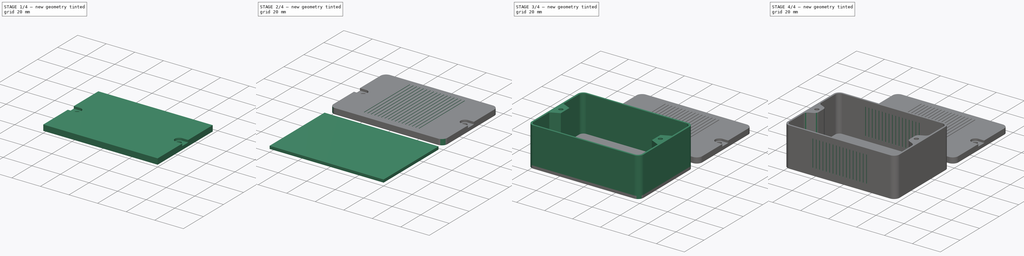
[diagram: build sequence overview — one tinted view per stage of 4, left to right]
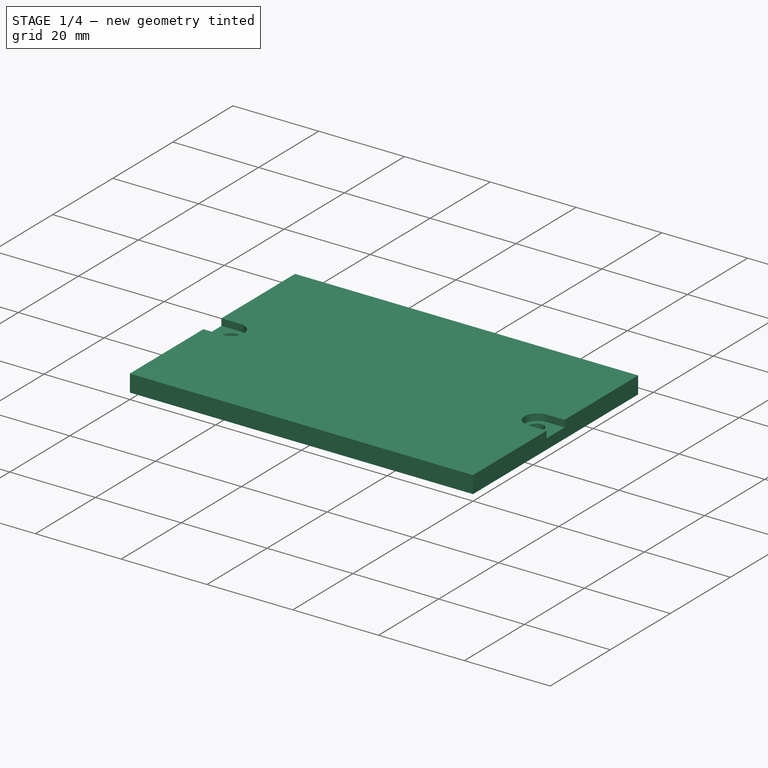
[diagram: stage 1 of 4 — iso view after this stage's code; geometry added in this stage tinted green]
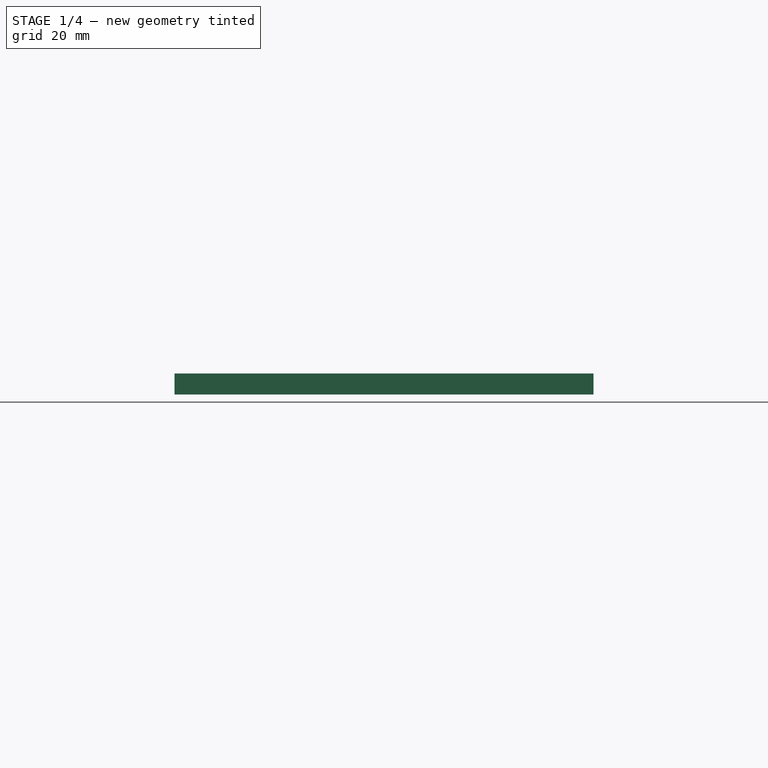
[diagram: stage 1 of 4 — front view after this stage's code; geometry added in this stage tinted green]
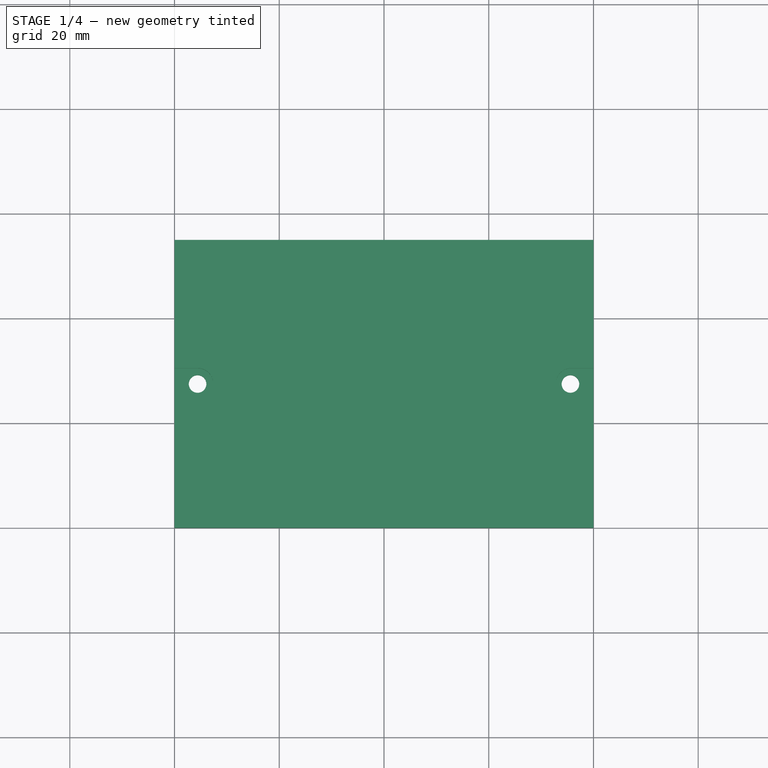
[diagram: stage 1 of 4 — top view after this stage's code; geometry added in this stage tinted green]
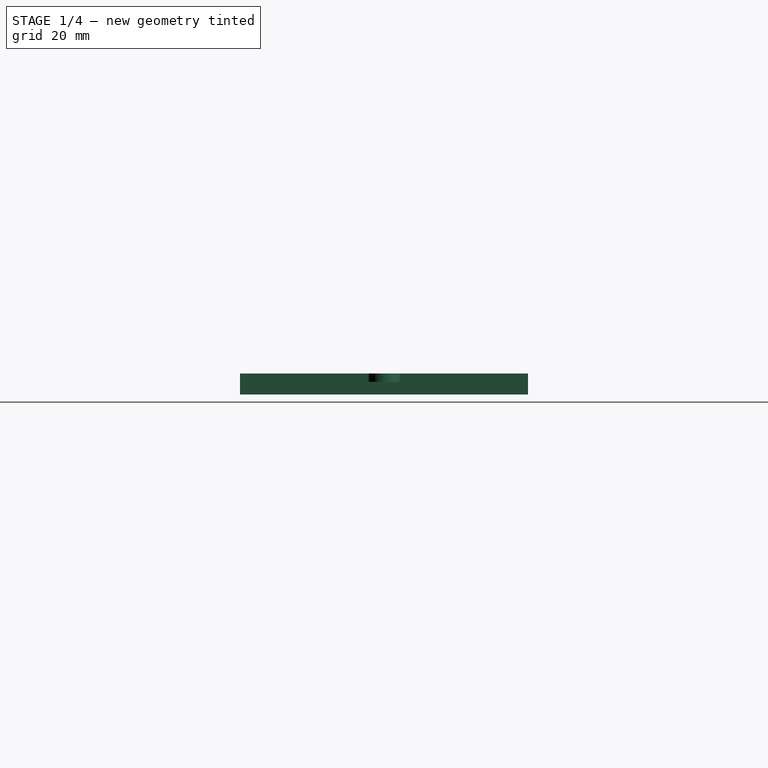
[diagram: stage 1 of 4 — right view after this stage's code; geometry added in this stage tinted green]
FCSTD DOCUMENT  (FreeCAD 0.16R6706 (Git))
Label: descbox
License: All rights reserved
LicenseURL: http://en.wikipedia.org/wiki/All_rights_reserved
objects: Sketcher::SketchObject×6, PartDesign::Pocket×5, PartDesign::Fillet×5, Part::Box×2, PartDesign::Pad×1
note: 25 computed .brp shape members not serialized (recipe doc carries the construction recipe); baked Part::Feature solids carry a one-line shape summary decoded from their .brp

FEATURE [Part::Box] Box001  label="top"
  Height = 4
  Length = 80
  Placement = pos=(0,60,0) rot=(0,0,1;0rad)
  Width = 55
FEATURE [Sketcher::SketchObject] Sketch001
  Placement = pos=(0,60,4) rot=(0,0,1;0rad)
  Support = -> Box001 [Face6]
  sketch-geometry (2):
    g0: Circle CenterX=4.4 CenterY=27.5 CenterZ=0 NormalX=0 NormalY=0 NormalZ=1 Radius=1.68
    g1: Circle CenterX=75.6 CenterY=27.5 CenterZ=0 NormalX=0 NormalY=0 NormalZ=1 Radius=1.68
  constraints (6):
    c: Radius(g0) = 1.68
    c: DistanceX(g-2,g0) = 4.4
    c: Equal(g0,g1)
    c: Distance(g0,g1) = 71.2
    c: DistanceY(g-1,g0) = 27.5
    c: DistanceY(g-1,g1) = 27.5
FEATURE [PartDesign::Pocket] Pocket
  Length = 5
  Placement = pos=(0,60,0) rot=(0,0,1;0rad)
  Sketch = -> Sketch001
  Type = 0
FEATURE [Sketcher::SketchObject] Sketch004
  Placement = pos=(0,60,4) rot=(0,0,1;0rad)
  Support = -> Pocket [Face3]
  sketch-geometry (8):
    g0: ArcOfCircle CenterX=-0.983226 CenterY=27.5 CenterZ=0 NormalX=0 NormalY=0 NormalZ=1 Radius=3 StartAngle=1.5708 EndAngle=4.71239
    g1: ArcOfCircle CenterX=4.4 CenterY=27.5 CenterZ=0 NormalX=0 NormalY=0 NormalZ=1 Radius=3 StartAngle=4.71239 EndAngle=7.85398
    g2: LineSegment StartX=-0.983226 StartY=24.5 StartZ=0 EndX=4.4 EndY=24.5 EndZ=0
    g3: LineSegment StartX=-0.983226 StartY=30.5 StartZ=0 EndX=4.4 EndY=30.5 EndZ=0
    g4: ArcOfCircle CenterX=81.0722 CenterY=27.5 CenterZ=0 NormalX=0 NormalY=0 NormalZ=1 Radius=3 StartAngle=4.71239 EndAngle=7.85398
    g5: ArcOfCircle CenterX=75.8 CenterY=27.5 CenterZ=0 NormalX=0 NormalY=0 NormalZ=1 Radius=3 StartAngle=1.5708 EndAngle=4.71239
    g6: LineSegment StartX=81.0722 StartY=30.5 StartZ=0 EndX=75.8 EndY=30.5 EndZ=0
    g7: LineSegment StartX=81.0722 StartY=24.5 StartZ=0 EndX=75.8 EndY=24.5 EndZ=0
  constraints (18):
    c: Tangent(g0,g3) = 1.5708
    c: Tangent(g0,g2) = -1.5708
    c: Tangent(g2,g1) = -1.5708
    c: Tangent(g3,g1) = 1.5708
    c: Horizontal(g2)
    c: Equal(g0,g1)
    c: Tangent(g4,g7) = 1.5708
    c: Tangent(g4,g6) = -1.5708
    c: Tangent(g6,g5) = -1.5708
    c: Tangent(g7,g5) = 1.5708
    c: Horizontal(g6)
    c: Equal(g4,g5)
    c: DistanceX(g-2,g1) = 4.4
    c: Distance(g1,g5) = 71.4
    c: Radius(g5) = 3
    c: Equal(g1,g5)
    c: DistanceY(g-1,g0) = 27.5
    c: DistanceY(g-1,g4) = 27.5
FEATURE [PartDesign::Pocket] Pocket002
  Length = 1.6
  Placement = pos=(0,60,0) rot=(0,0,1;0rad)
  Sketch = -> Sketch004
  Type = 0
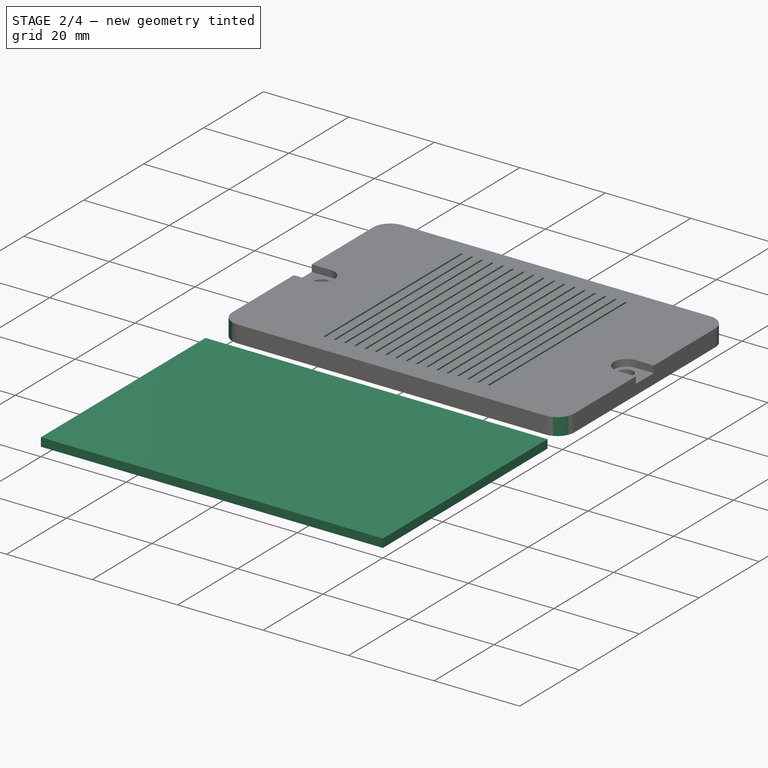
[diagram: stage 2 of 4 — iso view after this stage's code; geometry added in this stage tinted green]
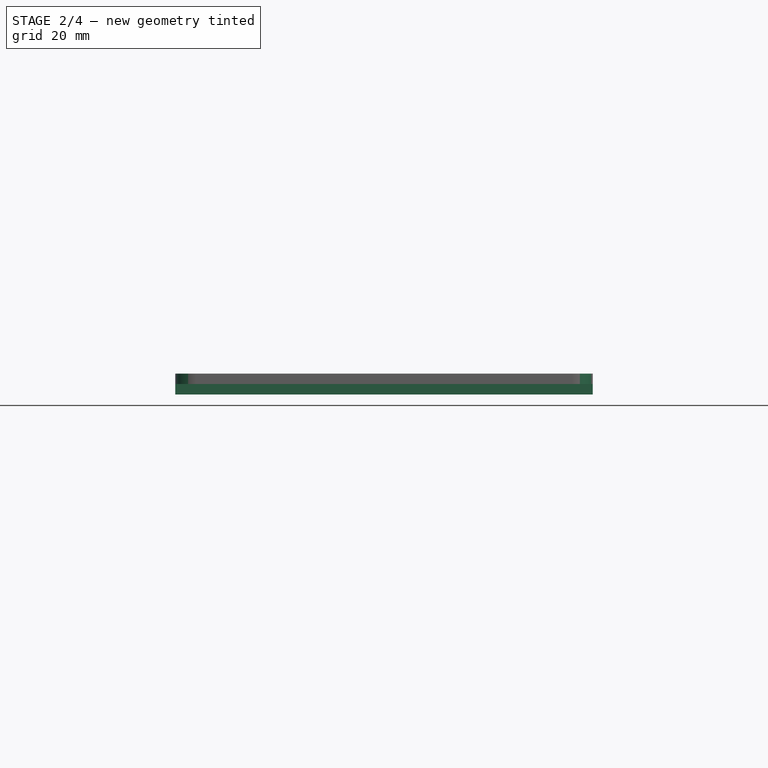
[diagram: stage 2 of 4 — front view after this stage's code; geometry added in this stage tinted green]
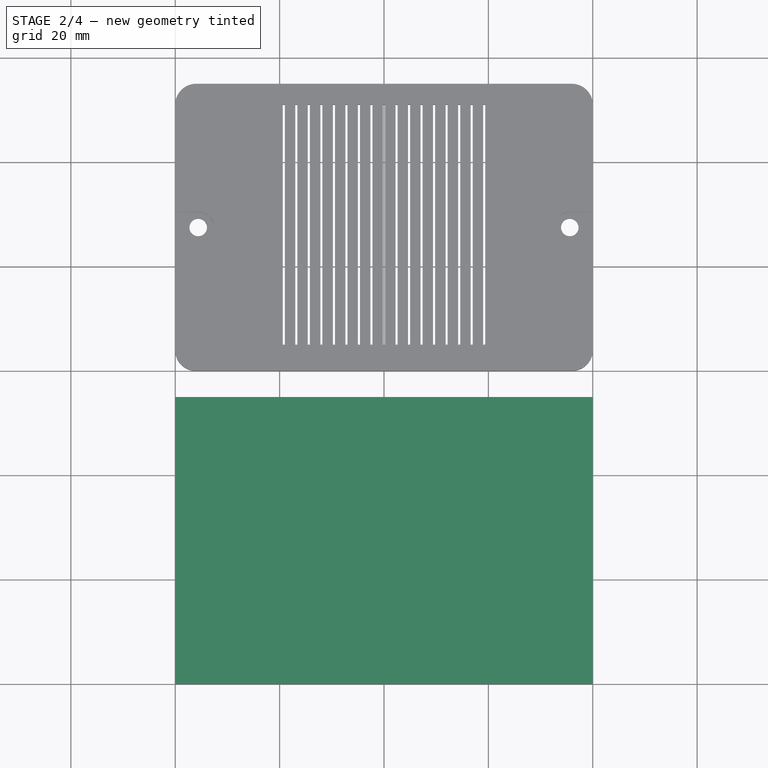
[diagram: stage 2 of 4 — top view after this stage's code; geometry added in this stage tinted green]
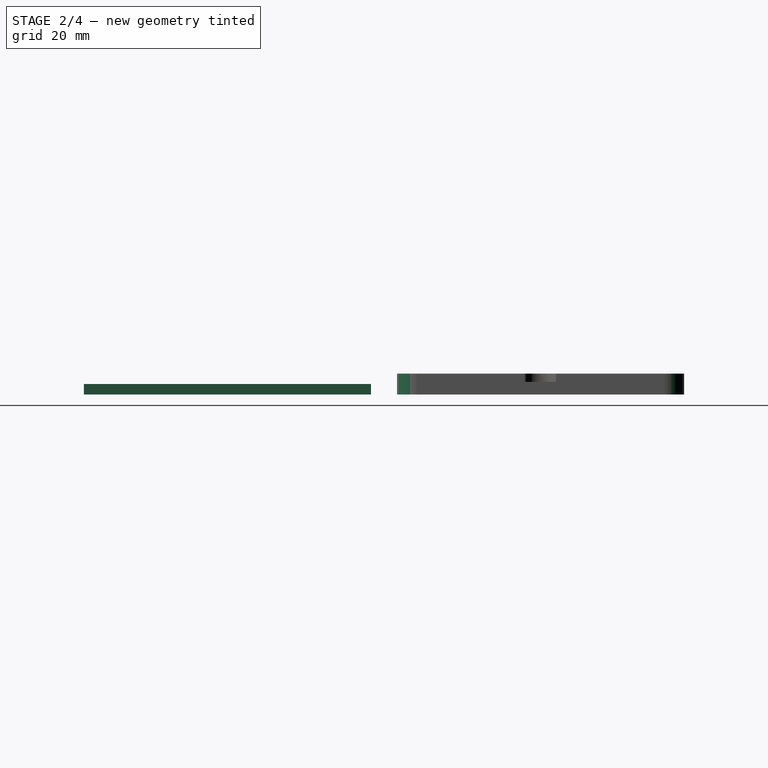
[diagram: stage 2 of 4 — right view after this stage's code; geometry added in this stage tinted green]
FEATURE [Part::Box] Box  label="btm"
  Height = 2
  Length = 80
  Width = 55
FEATURE [PartDesign::Fillet] Fillet
  Base = -> Pocket002 [Edge31,Edge26,Edge6,Edge8]
  Placement = pos=(0,60,0) rot=(0,0,1;0rad)
  Radius = 4
FEATURE [Sketcher::SketchObject] Sketch007
  Placement = pos=(0,60,4) rot=(0,0,1;0rad)
  Support = -> Fillet [Face2]
  sketch-geometry (68):
    g0: LineSegment StartX=20.6 StartY=51 StartZ=0 EndX=21 EndY=51 EndZ=0
    g1: LineSegment StartX=21 StartY=51 StartZ=0 EndX=21 EndY=5 EndZ=0
    g2: LineSegment StartX=21 StartY=5 StartZ=0 EndX=20.6 EndY=5 EndZ=0
    g3: LineSegment StartX=20.6 StartY=5 StartZ=0 EndX=20.6 EndY=51 EndZ=0
    g4: LineSegment StartX=23 StartY=51 StartZ=0 EndX=23.4 EndY=51 EndZ=0
    g5: LineSegment StartX=23.4 StartY=51 StartZ=0 EndX=23.4 EndY=5 EndZ=0
    g6: LineSegment StartX=23.4 StartY=5 StartZ=0 EndX=23 EndY=5 EndZ=0
    g7: LineSegment StartX=23 StartY=5 StartZ=0 EndX=23 EndY=51 EndZ=0
    g8: LineSegment StartX=25.4 StartY=51 StartZ=0 EndX=25.8 EndY=51 EndZ=0
    g9: LineSegment StartX=25.8 StartY=51 StartZ=0 EndX=25.8 EndY=5 EndZ=0
    g10: LineSegment StartX=25.8 StartY=5 StartZ=0 EndX=25.4 EndY=5 EndZ=0
    g11: LineSegment StartX=25.4 StartY=5 StartZ=0 EndX=25.4 EndY=51 EndZ=0
    g12: LineSegment StartX=27.8 StartY=51 StartZ=0 EndX=28.2 EndY=51 EndZ=0
    g13: LineSegment StartX=28.2 StartY=51 StartZ=0 EndX=28.2 EndY=5 EndZ=0
    g14: LineSegment StartX=28.2 StartY=5 StartZ=0 EndX=27.8 EndY=5 EndZ=0
    g15: LineSegment StartX=27.8 StartY=5 StartZ=0 EndX=27.8 EndY=51 EndZ=0
    g16: LineSegment StartX=30.2 StartY=51 StartZ=0 EndX=30.6 EndY=51 EndZ=0
    g17: LineSegment StartX=30.6 StartY=51 StartZ=0 EndX=30.6 EndY=5 EndZ=0
    g18: LineSegment StartX=30.6 StartY=5 StartZ=0 EndX=30.2 EndY=5 EndZ=0
    g19: LineSegment StartX=30.2 StartY=5 StartZ=0 EndX=30.2 EndY=51 EndZ=0
    g20: LineSegment StartX=32.6 StartY=51 StartZ=0 EndX=33 EndY=51 EndZ=0
    g21: LineSegment StartX=33 StartY=51 StartZ=0 EndX=33 EndY=5 EndZ=0
    g22: LineSegment StartX=33 StartY=5 StartZ=0 EndX=32.6 EndY=5 EndZ=0
    g23: LineSegment StartX=32.6 StartY=5 StartZ=0 EndX=32.6 EndY=51 EndZ=0
    g24: LineSegment StartX=35 StartY=51 StartZ=0 EndX=35.4 EndY=51 EndZ=0
    g25: LineSegment StartX=35.4 StartY=51 StartZ=0 EndX=35.4 EndY=5 EndZ=0
    g26: LineSegment StartX=35.4 StartY=5 StartZ=0 EndX=35 EndY=5 EndZ=0
    g27: LineSegment StartX=35 StartY=5 StartZ=0 EndX=35 EndY=51 EndZ=0
    g28: LineSegment StartX=39.8 StartY=51 StartZ=0 EndX=40.2 EndY=51 EndZ=0
    g29: LineSegment StartX=40.2 StartY=51 StartZ=0 EndX=40.2 EndY=5 EndZ=0
    g30: LineSegment StartX=40.2 StartY=5 StartZ=0 EndX=39.8 EndY=5 EndZ=0
    g31: LineSegment StartX=39.8 StartY=5 StartZ=0 EndX=39.8 EndY=51 EndZ=0
    g32: LineSegment StartX=37.4 StartY=51 StartZ=0 EndX=37.8 EndY=51 EndZ=0
    g33: LineSegment StartX=37.8 StartY=51 StartZ=0 EndX=37.8 EndY=5 EndZ=0
    g34: LineSegment StartX=37.8 StartY=5 StartZ=0 EndX=37.4 EndY=5 EndZ=0
    g35: LineSegment StartX=37.4 StartY=5 StartZ=0 EndX=37.4 EndY=51 EndZ=0
    g36: LineSegment StartX=42.2 StartY=51 StartZ=0 EndX=42.6 EndY=51 EndZ=0
    g37: LineSegment StartX=42.6 StartY=51 StartZ=0 EndX=42.6 EndY=5 EndZ=0
    g38: LineSegment StartX=42.6 StartY=5 StartZ=0 EndX=42.2 EndY=5 EndZ=0
    g39: LineSegment StartX=42.2 StartY=5 StartZ=0 EndX=42.2 EndY=51 EndZ=0
    g40: LineSegment StartX=44.6 StartY=51 StartZ=0 EndX=45 EndY=51 EndZ=0
    g41: LineSegment StartX=45 StartY=51 StartZ=0 EndX=45 EndY=5 EndZ=0
    g42: LineSegment StartX=45 StartY=5 StartZ=0 EndX=44.6 EndY=5 EndZ=0
    g43: LineSegment StartX=44.6 StartY=5 StartZ=0 EndX=44.6 EndY=51 EndZ=0
    g44: LineSegment StartX=59.4 StartY=51 StartZ=0 EndX=59 EndY=51 EndZ=0
    g45: LineSegment StartX=59 StartY=51 StartZ=0 EndX=59 EndY=5 EndZ=0
    g46: LineSegment StartX=59 StartY=5 StartZ=0 EndX=59.4 EndY=5 EndZ=0
    g47: LineSegment StartX=59.4 StartY=5 StartZ=0 EndX=59.4 EndY=51 EndZ=0
    g48: LineSegment StartX=47 StartY=51 StartZ=0 EndX=47.4 EndY=51 EndZ=0
    g49: LineSegment StartX=47.4 StartY=51 StartZ=0 EndX=47.4 EndY=5 EndZ=0
    g50: LineSegment StartX=47.4 StartY=5 StartZ=0 EndX=47 EndY=5 EndZ=0
    g51: LineSegment StartX=47 StartY=5 StartZ=0 EndX=47 EndY=51 EndZ=0
    g52: LineSegment StartX=49.4 StartY=51 StartZ=0 EndX=49.8 EndY=51 EndZ=0
    g53: LineSegment StartX=49.8 StartY=51 StartZ=0 EndX=49.8 EndY=5 EndZ=0
    g54: LineSegment StartX=49.8 StartY=5 StartZ=0 EndX=49.4 EndY=5 EndZ=0
    g55: LineSegment StartX=49.4 StartY=5 StartZ=0 EndX=49.4 EndY=51 EndZ=0
    g56: LineSegment StartX=51.8 StartY=51 StartZ=0 EndX=52.2 EndY=51 EndZ=0
    g57: LineSegment StartX=52.2 StartY=51 StartZ=0 EndX=52.2 EndY=5 EndZ=0
    g58: LineSegment StartX=52.2 StartY=5 StartZ=0 EndX=51.8 EndY=5 EndZ=0
    g59: LineSegment StartX=51.8 StartY=5 StartZ=0 EndX=51.8 EndY=51 EndZ=0
    g60: LineSegment StartX=54.2 StartY=51 StartZ=0 EndX=54.6 EndY=51 EndZ=0
    g61: LineSegment StartX=54.6 StartY=51 StartZ=0 EndX=54.6 EndY=5 EndZ=0
    g62: LineSegment StartX=54.6 StartY=5 StartZ=0 EndX=54.2 EndY=5 EndZ=0
    g63: LineSegment StartX=54.2 StartY=5 StartZ=0 EndX=54.2 EndY=51 EndZ=0
    g64: LineSegment StartX=56.6 StartY=51 StartZ=0 EndX=57 EndY=51 EndZ=0
    g65: LineSegment StartX=57 StartY=51 StartZ=0 EndX=57 EndY=5 EndZ=0
    g66: LineSegment StartX=57 StartY=5 StartZ=0 EndX=56.6 EndY=5 EndZ=0
    g67: LineSegment StartX=56.6 StartY=5 StartZ=0 EndX=56.6 EndY=51 EndZ=0
  constraints (205):
    c: Coincident(g0,g1)
    c: Coincident(g1,g2)
    c: Coincident(g2,g3)
    c: Coincident(g3,g0)
    c: Horizontal(g0)
    c: Horizontal(g2)
    c: Vertical(g1)
    c: Vertical(g3)
    c: Distance(g0) = 0.4
    c: DistanceY(g1) = 5
    c: Distance(g1) = 46
    c: DistanceX(g0) = 21
    c: Coincident(g4,g5)
    c: Coincident(g5,g6)
    c: Coincident(g6,g7)
    c: Coincident(g7,g4)
    c: Horizontal(g4)
    c: Horizontal(g6)
    c: Vertical(g5)
    c: Vertical(g7)
    c: Equal(g0,g4) = 0.4
    c: Equal(g1,g5) = 19
    c: Distance(g0,g4) = 2
    c: DistanceY(g-1,g6) = 5
    c: Coincident(g8,g9)
    c: Coincident(g9,g10)
    c: Coincident(g10,g11)
    c: Coincident(g11,g8)
    c: Horizontal(g8)
    c: Horizontal(g10)
    c: Vertical(g9)
    c: Vertical(g11)
    c: DistanceY(g10) = 5
    c: Distance(g8,g4) = 2
    c: Equal(g4,g8)
    c: Coincident(g12,g13)
    c: Coincident(g13,g14)
    c: Coincident(g14,g15)
    c: Coincident(g15,g12)
    c: Horizontal(g12)
    c: Horizontal(g14)
    c: Vertical(g13)
    c: Vertical(g15)
    c: Equal(g8,g12)
    c: DistanceY(g-1,g14) = 5
    c: Equal(g3,g7)
    c: Equal(g7,g11)
    c: Equal(g11,g15)
    c: Distance(g8,g12) = 2
    c: Coincident(g16,g17)
    c: Coincident(g17,g18)
    c: Coincident(g18,g19)
    c: Coincident(g19,g16)
    c: Horizontal(g16)
    c: Horizontal(g18)
    c: Vertical(g17)
    c: Vertical(g19)
    c: Equal(g19,g15)
    c: Equal(g16,g12)
    c: DistanceY(g18) = 5
    c: Distance(g12,g16) = 2
    c: Coincident(g20,g21)
    c: Coincident(g21,g22)
    c: Coincident(g22,g23)
    c: Coincident(g23,g20)
    c: Horizontal(g20)
    c: Horizontal(g22)
    c: Vertical(g21)
    c: Vertical(g23)
    c: Equal(g19,g23)
    c: Equal(g16,g20)
    c: DistanceY(g22) = 5
    c: Distance(g16,g20) = 2
    c: Coincident(g24,g25)
    c: Coincident(g25,g26)
    c: Coincident(g26,g27)
    c: Coincident(g27,g24)
    c: Horizontal(g24)
    c: Horizontal(g26)
    c: Vertical(g25)
    c: Vertical(g27)
    c: Equal(g23,g27)
    c: Equal(g20,g24)
    c: DistanceY(g26) = 5
    c: Distance(g20,g24) = 2
    c: Coincident(g28,g29)
    c: Coincident(g29,g30)
    c: Coincident(g30,g31)
    c: Coincident(g31,g28)
    c: Horizontal(g28)
    c: Horizontal(g30)
    c: Vertical(g29)
    c: Vertical(g31)
    c: Equal(g27,g31)
    c: Equal(g24,g28)
    c: DistanceY(g30) = 5
    c: Coincident(g32,g33)
    c: Coincident(g33,g34)
    c: Coincident(g34,g35)
    c: Coincident(g35,g32)
    c: Horizontal(g32)
    c: Horizontal(g34)
    c: Vertical(g33)
    c: Vertical(g35)
    c: Equal(g28,g32)
    c: DistanceY(g34) = 5
    c: Coincident(g36,g37)
    c: Coincident(g37,g38)
    c: Coincident(g38,g39)
    c: Coincident(g39,g36)
    c: Horizontal(g36)
    c: Horizontal(g38)
    c: Vertical(g37)
    c: Vertical(g39)
    c: Equal(g35,g39)
    c: Equal(g32,g36)
    c: DistanceY(g38) = 5
    c: Coincident(g40,g41)
    c: Coincident(g41,g42)
    c: Coincident(g42,g43)
    c: Coincident(g43,g40)
    c: Horizontal(g40)
    c: Horizontal(g42)
    c: Vertical(g41)
    c: Vertical(g43)
    c: Equal(g39,g43)
    c: Equal(g36,g40)
    c: DistanceY(g42) = 5
    c: Distance(g36,g40) = 2
    c: Coincident(g44,g45)
    c: Coincident(g45,g46)
    c: Coincident(g46,g47)
    c: Coincident(g47,g44)
    c: Horizontal(g44)
    c: Horizontal(g46)
    c: Vertical(g45)
    c: Vertical(g47)
    c: Equal(g43,g47)
    c: Equal(g40,g44)
    c: DistanceY(g46) = 5
    c: Coincident(g48,g49)
    c: Coincident(g49,g50)
    c: Coincident(g50,g51)
    c: Coincident(g51,g48)
    c: Horizontal(g48)
    c: Horizontal(g50)
    c: Vertical(g49)
    c: Vertical(g51)
    c: Equal(g43,g51)
    c: Equal(g40,g48)
    c: DistanceY(g50) = 5
    c: Distance(g40,g48) = 2
    c: Coincident(g52,g53)
    c: Coincident(g53,g54)
    c: Coincident(g54,g55)
    c: Coincident(g55,g52)
    c: Horizontal(g52)
    c: Horizontal(g54)
    c: Vertical(g53)
    c: Vertical(g55)
    c: Equal(g51,g55)
    c: Equal(g48,g52)
    c: DistanceY(g54) = 5
    c: Distance(g48,g52) = 2
    c: Coincident(g56,g57)
    c: Coincident(g57,g58)
    c: Coincident(g58,g59)
    c: Coincident(g59,g56)
    c: Horizontal(g56)
    c: Horizontal(g58)
    c: Vertical(g57)
    c: Vertical(g59)
    c: Equal(g55,g59)
    c: Equal(g52,g56)
    c: DistanceY(g58) = 5
    c: Distance(g52,g56) = 2
    c: Coincident(g60,g61)
    c: Coincident(g61,g62)
    c: Coincident(g62,g63)
    c: Coincident(g63,g60)
    c: Horizontal(g60)
    c: Horizontal(g62)
    c: Vertical(g61)
    c: Vertical(g63)
    c: Equal(g59,g63)
    c: Equal(g56,g60)
    c: DistanceY(g62) = 5
    c: Distance(g56,g60) = 2
    c: Coincident(g64,g65)
    c: Coincident(g65,g66)
    c: Coincident(g66,g67)
    c: Coincident(g67,g64)
    c: Horizontal(g64)
    c: Horizontal(g66)
    c: Vertical(g65)
    c: Vertical(g67)
    c: Equal(g63,g67)
    c: Equal(g60,g64)
    c: DistanceY(g66) = 5
    c: Distance(g60,g64) = 2
    c: Distance(g64,g44) = 2
    c: Equal(g35,g27)
    c: Distance(g36,g28) = 2
    c: Distance(g28,g32) = 2
    c: Distance(g32,g24) = 2
FEATURE [PartDesign::Pocket] Pocket005
  Length = 5
  Placement = pos=(0,60,0) rot=(0,0,1;0rad)
  Sketch = -> Sketch007
  Type = 0
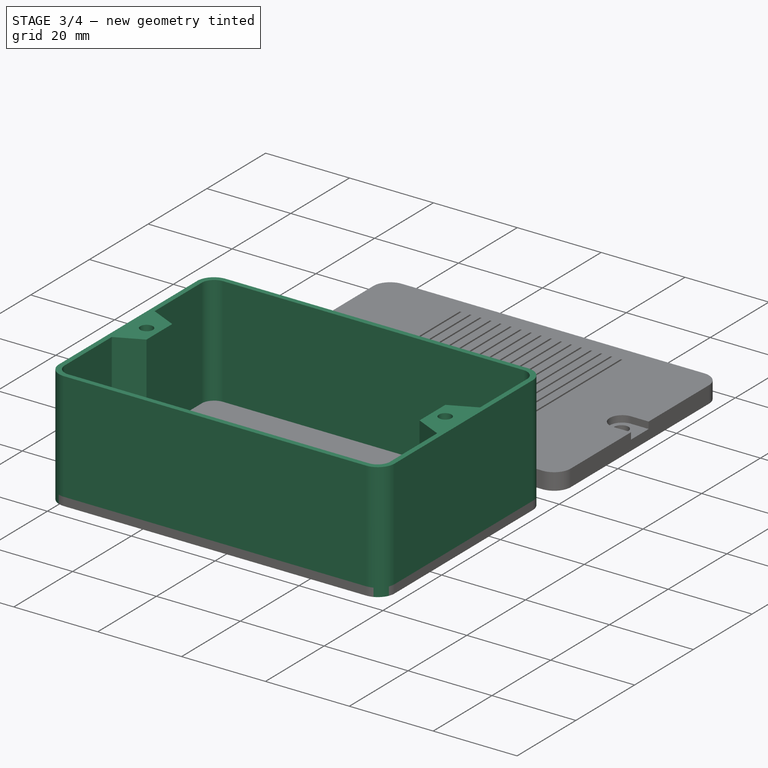
[diagram: stage 3 of 4 — iso view after this stage's code; geometry added in this stage tinted green]
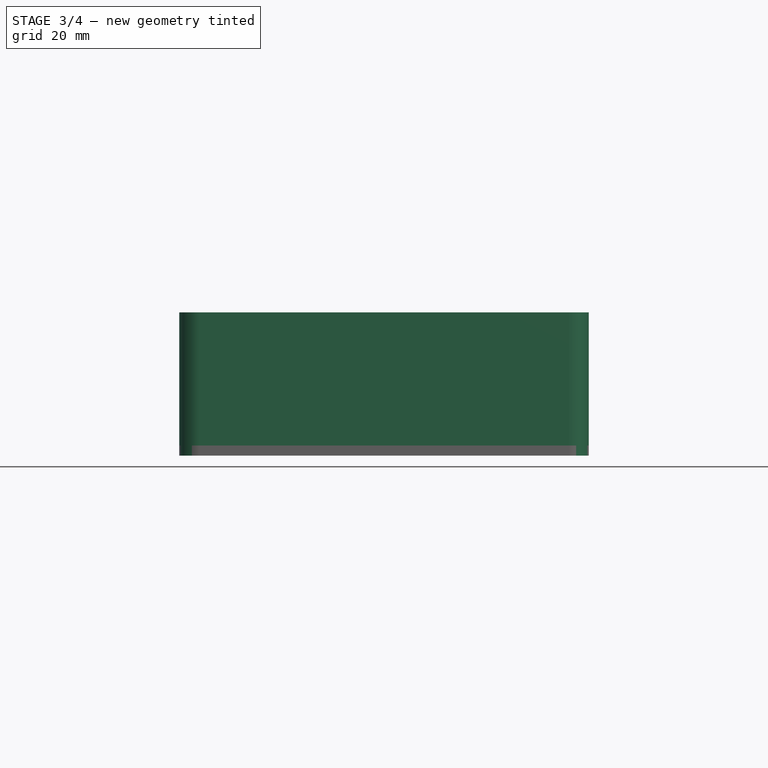
[diagram: stage 3 of 4 — front view after this stage's code; geometry added in this stage tinted green]
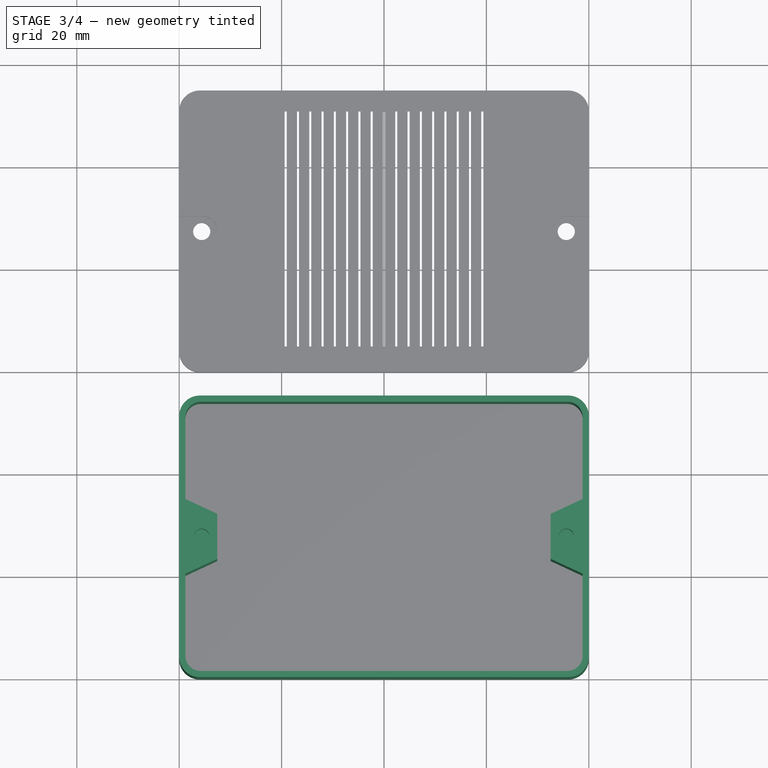
[diagram: stage 3 of 4 — top view after this stage's code; geometry added in this stage tinted green]
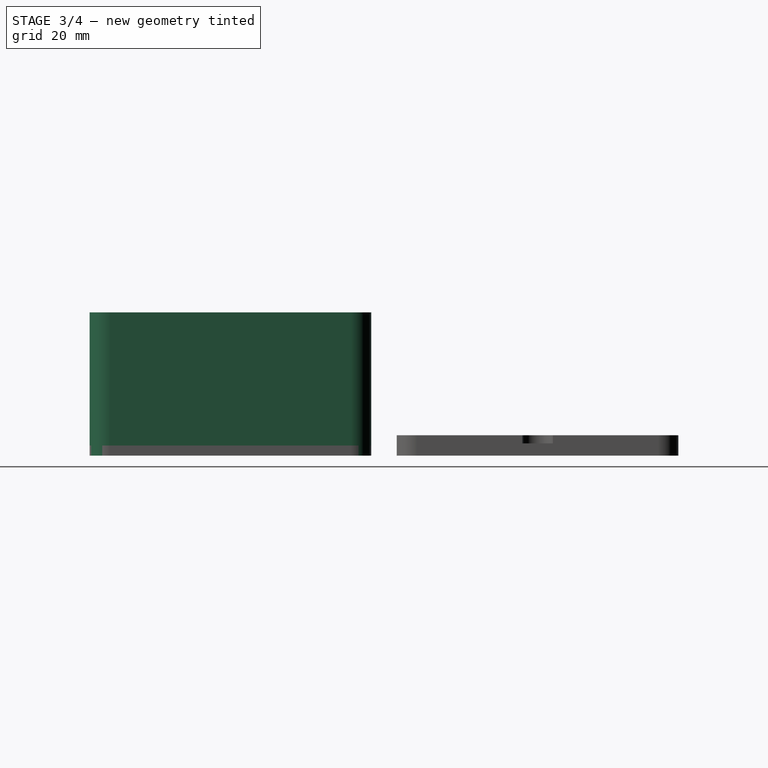
[diagram: stage 3 of 4 — right view after this stage's code; geometry added in this stage tinted green]
FEATURE [Sketcher::SketchObject] Sketch
  Placement = pos=(0,0,2) rot=(0,0,1;0rad)
  Support = -> Box [Face6]
  sketch-geometry (16):
    g0: LineSegment StartX=0 StartY=55 StartZ=0 EndX=80 EndY=55 EndZ=0
    g1: LineSegment StartX=80 StartY=55 StartZ=0 EndX=80 EndY=0 EndZ=0
    g2: LineSegment StartX=80 StartY=0 StartZ=0 EndX=0 EndY=0 EndZ=0
    g3: LineSegment StartX=0 StartY=0 StartZ=0 EndX=0 EndY=55 EndZ=0
    g4: LineSegment StartX=1.2 StartY=53.8 StartZ=0 EndX=78.8 EndY=53.8 EndZ=0
    g5: LineSegment StartX=78.8 StartY=53.8 StartZ=0 EndX=78.8 EndY=34.8 EndZ=0
    g6: LineSegment StartX=78.8 StartY=34.8 StartZ=0 EndX=72.5568 EndY=31.8888 EndZ=0
    g7: LineSegment StartX=72.5568 StartY=31.8888 StartZ=0 EndX=72.5568 EndY=23.1112 EndZ=0
    g8: LineSegment StartX=72.5568 StartY=23.1112 StartZ=0 EndX=78.8 EndY=20.2 EndZ=0
    g9: LineSegment StartX=78.8 StartY=20.2 StartZ=0 EndX=78.8 EndY=1.2 EndZ=0
    g10: LineSegment StartX=78.8 StartY=1.2 StartZ=0 EndX=1.2 EndY=1.2 EndZ=0
    g11: LineSegment StartX=1.2 StartY=1.2 StartZ=0 EndX=1.2 EndY=20.2 EndZ=0
    g12: LineSegment StartX=1.2 StartY=20.2 StartZ=0 EndX=7.44319 EndY=23.1112 EndZ=0
    g13: LineSegment StartX=7.44319 StartY=23.1112 StartZ=0 EndX=7.44319 EndY=31.8888 EndZ=0
    g14: LineSegment StartX=7.44319 StartY=31.8888 StartZ=0 EndX=1.2 EndY=34.8 EndZ=0
    g15: LineSegment StartX=1.2 StartY=34.8 StartZ=0 EndX=1.2 EndY=53.8 EndZ=0
  constraints (47):
    c: Coincident(g0,g1)
    c: Coincident(g1,g2)
    c: Coincident(g2,g3)
    c: Coincident(g3,g0)
    c: Horizontal(g0)
    c: Horizontal(g2)
    c: Vertical(g1)
    c: Vertical(g3)
    c: DistanceY(g-1,g2) = 0
    c: DistanceX(g-2,g2) = 0
    c: Distance(g0) = 80
    c: Distance(g1) = 55
    c: Coincident(g4,g5)
    c: Coincident(g5,g6)
    c: Coincident(g6,g7)
    c: Coincident(g7,g8)
    c: Coincident(g8,g9)
    c: Coincident(g9,g10)
    c: Coincident(g10,g11)
    c: Coincident(g11,g12)
    c: Coincident(g12,g13)
    c: Coincident(g13,g14)
    c: Coincident(g14,g15)
    c: Coincident(g15,g4)
    c: Equal(g4,g10)
    c: Parallel(g4,g10)
    c: Equal(g5,g9)
    c: Equal(g9,g15)
    c: Equal(g15,g11)
    c: Parallel(g9,g5)
    c: Parallel(g5,g15)
    c: Parallel(g15,g11)
    c: Perpendicular(g11,g10)
    c: Parallel(g-1,g10)
    c: DistanceY(g-1,g10) = 1.2
    c: Parallel(g7,g13)
    c: Equal(g14,g12)
    c: Equal(g12,g6)
    c: Equal(g6,g8)
    c: DistanceX(g-2,g4) = 1.2
    c: Distance(g4) = 77.6
    c: DistanceX(g-2,g10) = 1.2
    c: Distance(g5) = 19
    c: Equal(g7,g13)
    c: Parallel(g13,g-2)
    c: Angle(g5,g6) = 2.00713
    c: DistanceY(g-1,g4) = 53.8
FEATURE [PartDesign::Pad] Pad
  Length = 26
  Length2 = 100
  Sketch = -> Sketch
  Type = 0
FEATURE [Sketcher::SketchObject] Sketch003
  Placement = pos=(0,0,28) rot=(0,0,1;0rad)
  Support = -> Pad [Face10]
  sketch-geometry (2):
    g0: Circle CenterX=4.4 CenterY=27.5 CenterZ=0 NormalX=0 NormalY=0 NormalZ=1 Radius=1.5
    g1: Circle CenterX=75.6 CenterY=27.5 CenterZ=0 NormalX=0 NormalY=0 NormalZ=1 Radius=1.5
  constraints (6):
    c: Radius(g0) = 1.5
    c: Equal(g0,g1)
    c: DistanceY(g-1,g0) = 27.5
    c: DistanceY(g-1,g1) = 27.5
    c: DistanceX(g-2,g0) = 4.4
    c: Distance(g0,g1) = 71.2
FEATURE [PartDesign::Pocket] Pocket001
  Length = 7
  Sketch = -> Sketch003
  Type = 0
FEATURE [PartDesign::Fillet] Fillet001
  Base = -> Pocket001 [Edge15,Edge7,Edge8,Edge17,Edge10,Edge19,Edge5,Edge13]
  Radius = 4
FEATURE [PartDesign::Fillet] Fillet002
  Base = -> Fillet001 [Edge59,Edge57,Edge76,Edge79]
  Radius = 3
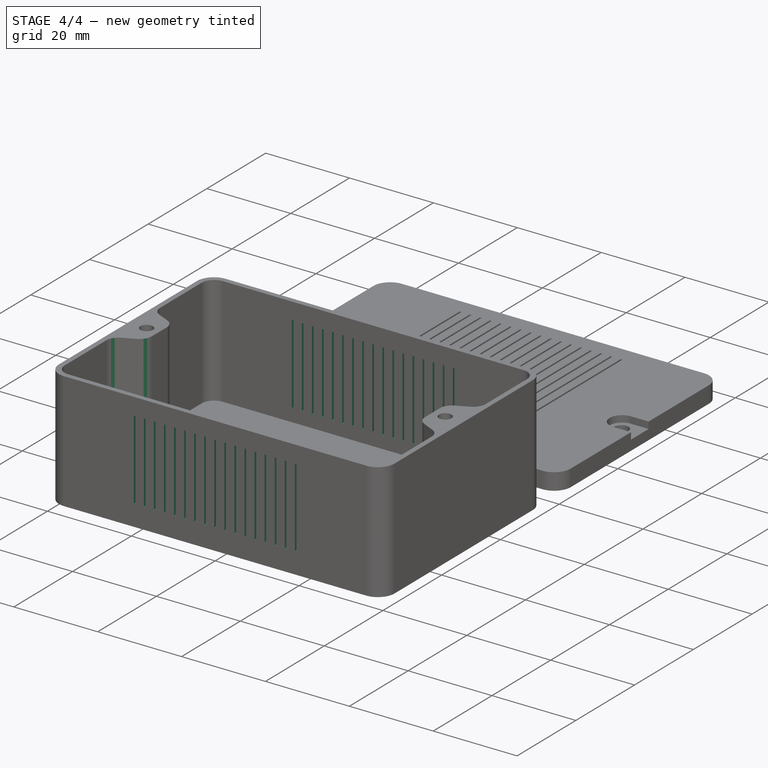
[diagram: stage 4 of 4 — iso view after this stage's code; geometry added in this stage tinted green]
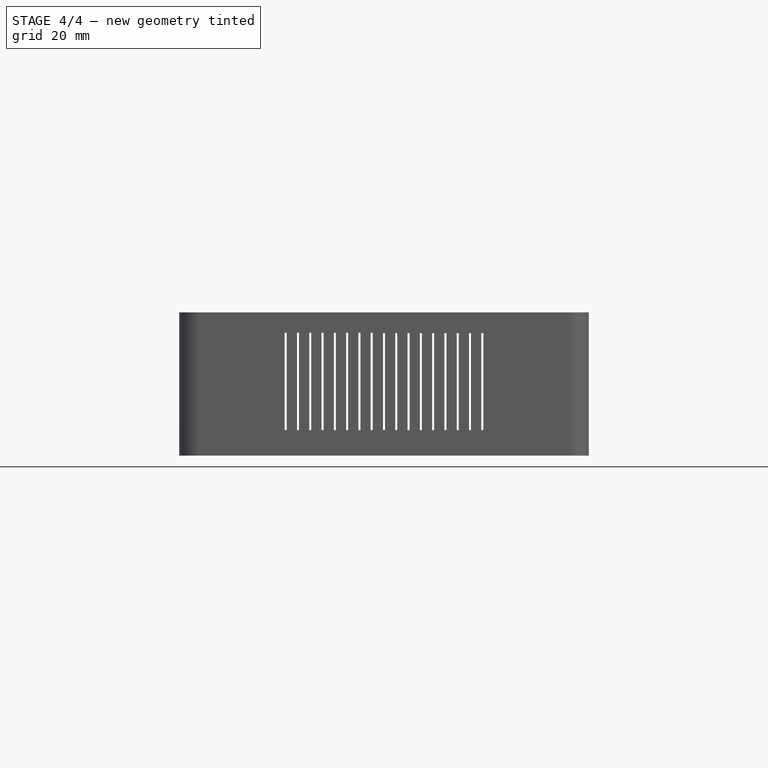
[diagram: stage 4 of 4 — front view after this stage's code; geometry added in this stage tinted green]
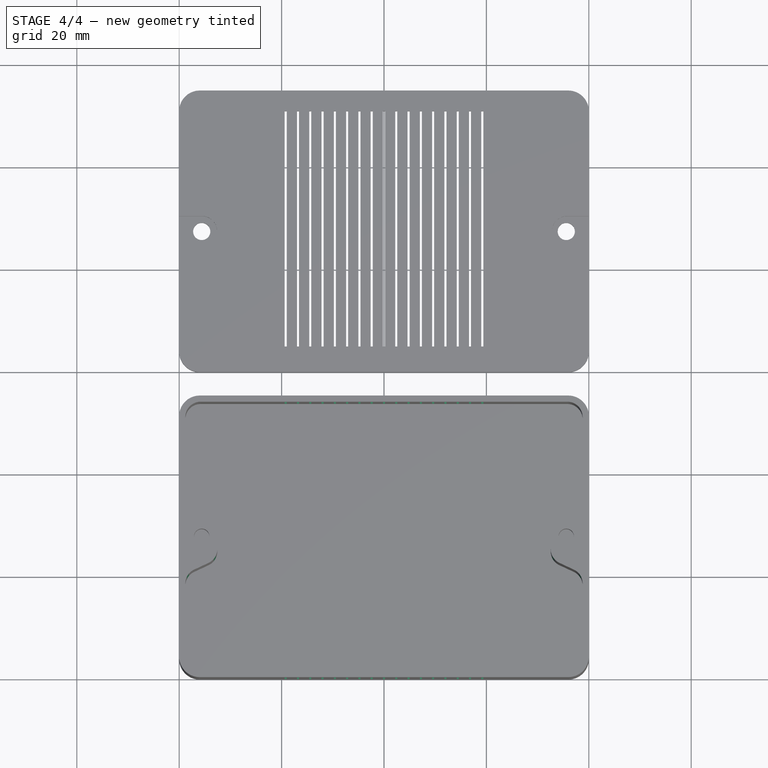
[diagram: stage 4 of 4 — top view after this stage's code; geometry added in this stage tinted green]
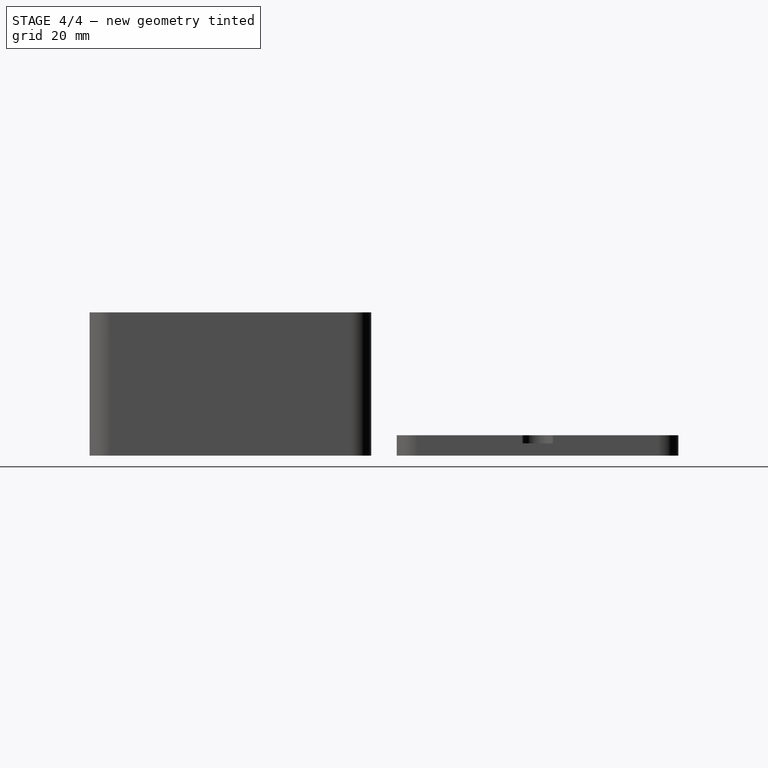
[diagram: stage 4 of 4 — right view after this stage's code; geometry added in this stage tinted green]
FEATURE [PartDesign::Fillet] Fillet003
  Base = -> Fillet002 [Edge35,Edge46,Edge49,Edge37]
  Radius = 3
FEATURE [PartDesign::Fillet] Fillet004
  Base = -> Fillet003 [Edge61,Edge57,Edge42,Edge39]
  Radius = 3
FEATURE [Sketcher::SketchObject] Sketch006
  Placement = pos=(0,0,0) rot=(1,0,0;1.5708rad)
  Support = -> Fillet004 [Face33]
  sketch-geometry (68):
    g0: LineSegment StartX=20.6 StartY=24 StartZ=0 EndX=21 EndY=24 EndZ=0
    g1: LineSegment StartX=21 StartY=24 StartZ=0 EndX=21 EndY=5 EndZ=0
    g2: LineSegment StartX=21 StartY=5 StartZ=0 EndX=20.6 EndY=5 EndZ=0
    g3: LineSegment StartX=20.6 StartY=5 StartZ=0 EndX=20.6 EndY=24 EndZ=0
    g4: LineSegment StartX=23 StartY=24 StartZ=0 EndX=23.4 EndY=24 EndZ=0
    g5: LineSegment StartX=23.4 StartY=24 StartZ=0 EndX=23.4 EndY=5 EndZ=0
    g6: LineSegment StartX=23.4 StartY=5 StartZ=0 EndX=23 EndY=5 EndZ=0
    g7: LineSegment StartX=23 StartY=5 StartZ=0 EndX=23 EndY=24 EndZ=0
    g8: LineSegment StartX=25.4 StartY=24 StartZ=0 EndX=25.8 EndY=24 EndZ=0
    g9: LineSegment StartX=25.8 StartY=24 StartZ=0 EndX=25.8 EndY=5 EndZ=0
    g10: LineSegment StartX=25.8 StartY=5 StartZ=0 EndX=25.4 EndY=5 EndZ=0
    g11: LineSegment StartX=25.4 StartY=5 StartZ=0 EndX=25.4 EndY=24 EndZ=0
    g12: LineSegment StartX=27.8 StartY=24 StartZ=0 EndX=28.2 EndY=24 EndZ=0
    g13: LineSegment StartX=28.2 StartY=24 StartZ=0 EndX=28.2 EndY=5 EndZ=0
    g14: LineSegment StartX=28.2 StartY=5 StartZ=0 EndX=27.8 EndY=5 EndZ=0
    g15: LineSegment StartX=27.8 StartY=5 StartZ=0 EndX=27.8 EndY=24 EndZ=0
    g16: LineSegment StartX=30.2 StartY=24 StartZ=0 EndX=30.6 EndY=24 EndZ=0
    g17: LineSegment StartX=30.6 StartY=24 StartZ=0 EndX=30.6 EndY=5 EndZ=0
    g18: LineSegment StartX=30.6 StartY=5 StartZ=0 EndX=30.2 EndY=5 EndZ=0
    g19: LineSegment StartX=30.2 StartY=5 StartZ=0 EndX=30.2 EndY=24 EndZ=0
    g20: LineSegment StartX=32.6 StartY=24 StartZ=0 EndX=33 EndY=24 EndZ=0
    g21: LineSegment StartX=33 StartY=24 StartZ=0 EndX=33 EndY=5 EndZ=0
    g22: LineSegment StartX=33 StartY=5 StartZ=0 EndX=32.6 EndY=5 EndZ=0
    g23: LineSegment StartX=32.6 StartY=5 StartZ=0 EndX=32.6 EndY=24 EndZ=0
    g24: LineSegment StartX=35 StartY=24 StartZ=0 EndX=35.4 EndY=24 EndZ=0
    g25: LineSegment StartX=35.4 StartY=24 StartZ=0 EndX=35.4 EndY=5 EndZ=0
    g26: LineSegment StartX=35.4 StartY=5 StartZ=0 EndX=35 EndY=5 EndZ=0
    g27: LineSegment StartX=35 StartY=5 StartZ=0 EndX=35 EndY=24 EndZ=0
    g28: LineSegment StartX=37.4 StartY=24 StartZ=0 EndX=37.8 EndY=24 EndZ=0
    g29: LineSegment StartX=37.8 StartY=24 StartZ=0 EndX=37.8 EndY=5 EndZ=0
    g30: LineSegment StartX=37.8 StartY=5 StartZ=0 EndX=37.4 EndY=5 EndZ=0
    g31: LineSegment StartX=37.4 StartY=5 StartZ=0 EndX=37.4 EndY=24 EndZ=0
    g32: LineSegment StartX=39.7988 StartY=23.9313 StartZ=0 EndX=40.1988 EndY=23.9313 EndZ=0
    g33: LineSegment StartX=40.1988 StartY=23.9313 StartZ=0 EndX=40.1988 EndY=5 EndZ=0
    g34: LineSegment StartX=40.1988 StartY=5 StartZ=0 EndX=39.7988 EndY=5 EndZ=0
    g35: LineSegment StartX=39.7988 StartY=5 StartZ=0 EndX=39.7988 EndY=23.9313 EndZ=0
    g36: LineSegment StartX=42.1988 StartY=23.9313 StartZ=0 EndX=42.5988 EndY=23.9313 EndZ=0
    g37: LineSegment StartX=42.5988 StartY=23.9313 StartZ=0 EndX=42.5988 EndY=5 EndZ=0
    g38: LineSegment StartX=42.5988 StartY=5 StartZ=0 EndX=42.1988 EndY=5 EndZ=0
    g39: LineSegment StartX=42.1988 StartY=5 StartZ=0 EndX=42.1988 EndY=23.9313 EndZ=0
    g40: LineSegment StartX=44.5988 StartY=23.9313 StartZ=0 EndX=44.9988 EndY=23.9313 EndZ=0
    g41: LineSegment StartX=44.9988 StartY=23.9313 StartZ=0 EndX=44.9988 EndY=5 EndZ=0
    g42: LineSegment StartX=44.9988 StartY=5 StartZ=0 EndX=44.5988 EndY=5 EndZ=0
    g43: LineSegment StartX=44.5988 StartY=5 StartZ=0 EndX=44.5988 EndY=23.9313 EndZ=0
    g44: LineSegment StartX=59.3988 StartY=23.9313 StartZ=0 EndX=58.9988 EndY=23.9313 EndZ=0
    g45: LineSegment StartX=58.9988 StartY=23.9313 StartZ=0 EndX=58.9988 EndY=5 EndZ=0
    g46: LineSegment StartX=58.9988 StartY=5 StartZ=0 EndX=59.3988 EndY=5 EndZ=0
    g47: LineSegment StartX=59.3988 StartY=5 StartZ=0 EndX=59.3988 EndY=23.9313 EndZ=0
    g48: LineSegment StartX=46.9988 StartY=23.9313 StartZ=0 EndX=47.3988 EndY=23.9313 EndZ=0
    g49: LineSegment StartX=47.3988 StartY=23.9313 StartZ=0 EndX=47.3988 EndY=5 EndZ=0
    g50: LineSegment StartX=47.3988 StartY=5 StartZ=0 EndX=46.9988 EndY=5 EndZ=0
    g51: LineSegment StartX=46.9988 StartY=5 StartZ=0 EndX=46.9988 EndY=23.9313 EndZ=0
    g52: LineSegment StartX=49.3988 StartY=23.9313 StartZ=0 EndX=49.7988 EndY=23.9313 EndZ=0
    g53: LineSegment StartX=49.7988 StartY=23.9313 StartZ=0 EndX=49.7988 EndY=5 EndZ=0
    g54: LineSegment StartX=49.7988 StartY=5 StartZ=0 EndX=49.3988 EndY=5 EndZ=0
    g55: LineSegment StartX=49.3988 StartY=5 StartZ=0 EndX=49.3988 EndY=23.9313 EndZ=0
    g56: LineSegment StartX=51.7988 StartY=23.9313 StartZ=0 EndX=52.1988 EndY=23.9313 EndZ=0
    g57: LineSegment StartX=52.1988 StartY=23.9313 StartZ=0 EndX=52.1988 EndY=5 EndZ=0
    g58: LineSegment StartX=52.1988 StartY=5 StartZ=0 EndX=51.7988 EndY=5 EndZ=0
    g59: LineSegment StartX=51.7988 StartY=5 StartZ=0 EndX=51.7988 EndY=23.9313 EndZ=0
    g60: LineSegment StartX=54.1988 StartY=23.9313 StartZ=0 EndX=54.5988 EndY=23.9313 EndZ=0
    g61: LineSegment StartX=54.5988 StartY=23.9313 StartZ=0 EndX=54.5988 EndY=5 EndZ=0
    g62: LineSegment StartX=54.5988 StartY=5 StartZ=0 EndX=54.1988 EndY=5 EndZ=0
    g63: LineSegment StartX=54.1988 StartY=5 StartZ=0 EndX=54.1988 EndY=23.9313 EndZ=0
    g64: LineSegment StartX=56.5988 StartY=23.9313 StartZ=0 EndX=56.9988 EndY=23.9313 EndZ=0
    g65: LineSegment StartX=56.9988 StartY=23.9313 StartZ=0 EndX=56.9988 EndY=5 EndZ=0
    g66: LineSegment StartX=56.9988 StartY=5 StartZ=0 EndX=56.5988 EndY=5 EndZ=0
    g67: LineSegment StartX=56.5988 StartY=5 StartZ=0 EndX=56.5988 EndY=23.9313 EndZ=0
  constraints (204):
    c: Coincident(g0,g1)
    c: Coincident(g1,g2)
    c: Coincident(g2,g3)
    c: Coincident(g3,g0)
    c: Horizontal(g0)
    c: Horizontal(g2)
    c: Vertical(g1)
    c: Vertical(g3)
    c: Distance(g0) = 0.4
    c: DistanceY(g1) = 5
    c: Distance(g1) = 19
    c: DistanceX(g0) = 21
    c: Coincident(g4,g5)
    c: Coincident(g5,g6)
    c: Coincident(g6,g7)
    c: Coincident(g7,g4)
    c: Horizontal(g4)
    c: Horizontal(g6)
    c: Vertical(g5)
    c: Vertical(g7)
    c: Equal(g0,g4) = 0.4
    c: Equal(g1,g5) = 19
    c: Distance(g0,g4) = 2
    c: DistanceY(g-1,g6) = 5
    c: Coincident(g8,g9)
    c: Coincident(g9,g10)
    c: Coincident(g10,g11)
    c: Coincident(g11,g8)
    c: Horizontal(g8)
    c: Horizontal(g10)
    c: Vertical(g9)
    c: Vertical(g11)
    c: DistanceY(g10) = 5
    c: Distance(g8,g4) = 2
    c: Equal(g4,g8)
    c: Coincident(g12,g13)
    c: Coincident(g13,g14)
    c: Coincident(g14,g15)
    c: Coincident(g15,g12)
    c: Horizontal(g12)
    c: Horizontal(g14)
    c: Vertical(g13)
    c: Vertical(g15)
    c: Equal(g8,g12)
    c: DistanceY(g-1,g14) = 5
    c: Equal(g3,g7)
    c: Equal(g7,g11)
    c: Equal(g11,g15)
    c: Distance(g8,g12) = 2
    c: Coincident(g16,g17)
    c: Coincident(g17,g18)
    c: Coincident(g18,g19)
    c: Coincident(g19,g16)
    c: Horizontal(g16)
    c: Horizontal(g18)
    c: Vertical(g17)
    c: Vertical(g19)
    c: Equal(g19,g15)
    c: Equal(g16,g12)
    c: DistanceY(g18) = 5
    c: Distance(g12,g16) = 2
    c: Coincident(g20,g21)
    c: Coincident(g21,g22)
    c: Coincident(g22,g23)
    c: Coincident(g23,g20)
    c: Horizontal(g20)
    c: Horizontal(g22)
    c: Vertical(g21)
    c: Vertical(g23)
    c: Equal(g19,g23)
    c: Equal(g16,g20)
    c: DistanceY(g22) = 5
    c: Distance(g16,g20) = 2
    c: Coincident(g24,g25)
    c: Coincident(g25,g26)
    c: Coincident(g26,g27)
    c: Coincident(g27,g24)
    c: Horizontal(g24)
    c: Horizontal(g26)
    c: Vertical(g25)
    c: Vertical(g27)
    c: Equal(g23,g27)
    c: Equal(g20,g24)
    c: DistanceY(g26) = 5
    c: Distance(g20,g24) = 2
    c: Coincident(g28,g29)
    c: Coincident(g29,g30)
    c: Coincident(g30,g31)
    c: Coincident(g31,g28)
    c: Horizontal(g28)
    c: Horizontal(g30)
    c: Vertical(g29)
    c: Vertical(g31)
    c: Equal(g27,g31)
    c: Equal(g24,g28)
    c: DistanceY(g30) = 5
    c: Distance(g24,g28) = 2
    c: Coincident(g32,g33)
    c: Coincident(g33,g34)
    c: Coincident(g34,g35)
    c: Coincident(g35,g32)
    c: Horizontal(g32)
    c: Horizontal(g34)
    c: Vertical(g33)
    c: Vertical(g35)
    c: Equal(g28,g32)
    c: DistanceY(g34) = 5
    c: Distance(g28,g32) = 2
    c: Coincident(g36,g37)
    c: Coincident(g37,g38)
    c: Coincident(g38,g39)
    c: Coincident(g39,g36)
    c: Horizontal(g36)
    c: Horizontal(g38)
    c: Vertical(g37)
    c: Vertical(g39)
    c: Equal(g35,g39)
    c: Equal(g32,g36)
    c: DistanceY(g38) = 5
    c: Distance(g32,g36) = 2
    c: Coincident(g40,g41)
    c: Coincident(g41,g42)
    c: Coincident(g42,g43)
    c: Coincident(g43,g40)
    c: Horizontal(g40)
    c: Horizontal(g42)
    c: Vertical(g41)
    c: Vertical(g43)
    c: Equal(g39,g43)
    c: Equal(g36,g40)
    c: DistanceY(g42) = 5
    c: Distance(g36,g40) = 2
    c: Coincident(g44,g45)
    c: Coincident(g45,g46)
    c: Coincident(g46,g47)
    c: Coincident(g47,g44)
    c: Horizontal(g44)
    c: Horizontal(g46)
    c: Vertical(g45)
    c: Vertical(g47)
    c: Equal(g43,g47)
    c: Equal(g40,g44)
    c: DistanceY(g46) = 5
    c: Coincident(g48,g49)
    c: Coincident(g49,g50)
    c: Coincident(g50,g51)
    c: Coincident(g51,g48)
    c: Horizontal(g48)
    c: Horizontal(g50)
    c: Vertical(g49)
    c: Vertical(g51)
    c: Equal(g43,g51)
    c: Equal(g40,g48)
    c: DistanceY(g50) = 5
    c: Distance(g40,g48) = 2
    c: Coincident(g52,g53)
    c: Coincident(g53,g54)
    c: Coincident(g54,g55)
    c: Coincident(g55,g52)
    c: Horizontal(g52)
    c: Horizontal(g54)
    c: Vertical(g53)
    c: Vertical(g55)
    c: Equal(g51,g55)
    c: Equal(g48,g52)
    c: DistanceY(g54) = 5
    c: Distance(g48,g52) = 2
    c: Coincident(g56,g57)
    c: Coincident(g57,g58)
    c: Coincident(g58,g59)
    c: Coincident(g59,g56)
    c: Horizontal(g56)
    c: Horizontal(g58)
    c: Vertical(g57)
    c: Vertical(g59)
    c: Equal(g55,g59)
    c: Equal(g52,g56)
    c: DistanceY(g58) = 5
    c: Distance(g52,g56) = 2
    c: Coincident(g60,g61)
    c: Coincident(g61,g62)
    c: Coincident(g62,g63)
    c: Coincident(g63,g60)
    c: Horizontal(g60)
    c: Horizontal(g62)
    c: Vertical(g61)
    c: Vertical(g63)
    c: Equal(g59,g63)
    c: Equal(g56,g60)
    c: DistanceY(g62) = 5
    c: Distance(g56,g60) = 2
    c: Coincident(g64,g65)
    c: Coincident(g65,g66)
    c: Coincident(g66,g67)
    c: Coincident(g67,g64)
    c: Horizontal(g64)
    c: Horizontal(g66)
    c: Vertical(g65)
    c: Vertical(g67)
    c: Equal(g63,g67)
    c: Equal(g60,g64)
    c: DistanceY(g66) = 5
    c: Distance(g60,g64) = 2
    c: Distance(g64,g44) = 2
FEATURE [PartDesign::Pocket] Pocket004
  Length = 5
  Sketch = -> Sketch006
  Type = 1
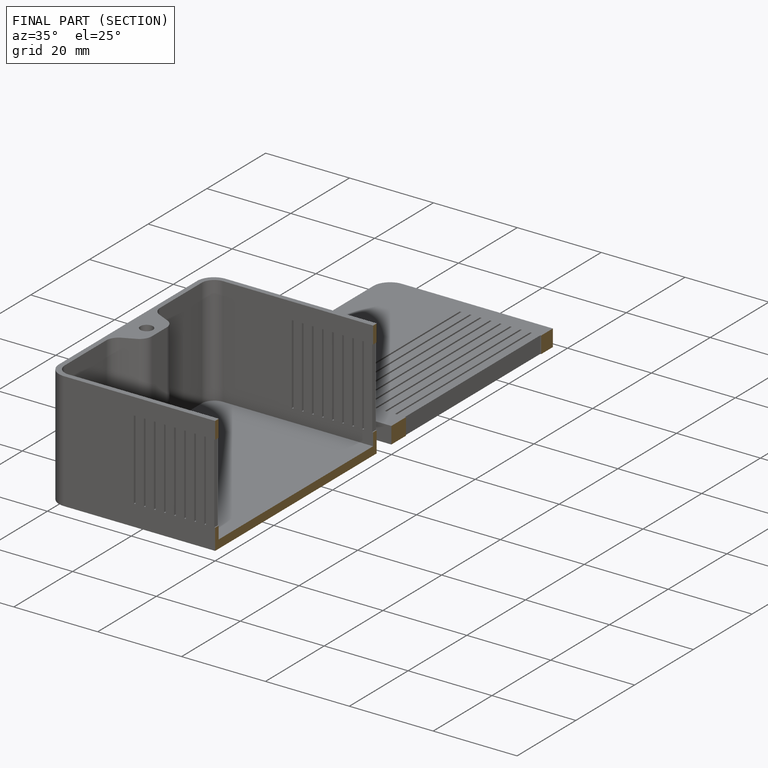
[diagram: finished part — half-section view (interior)]
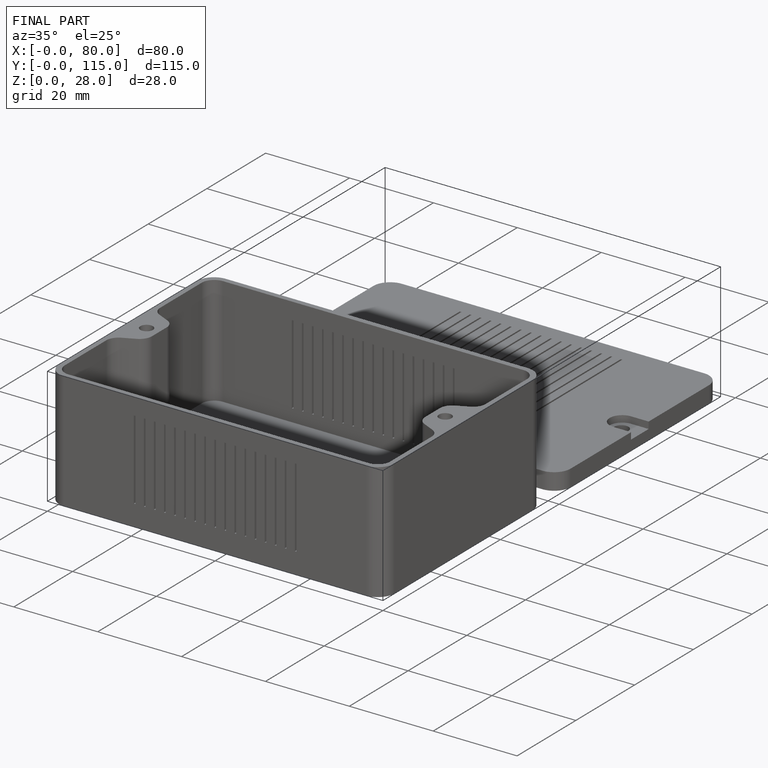
[diagram: finished part — iso view with bounding-box wireframe]
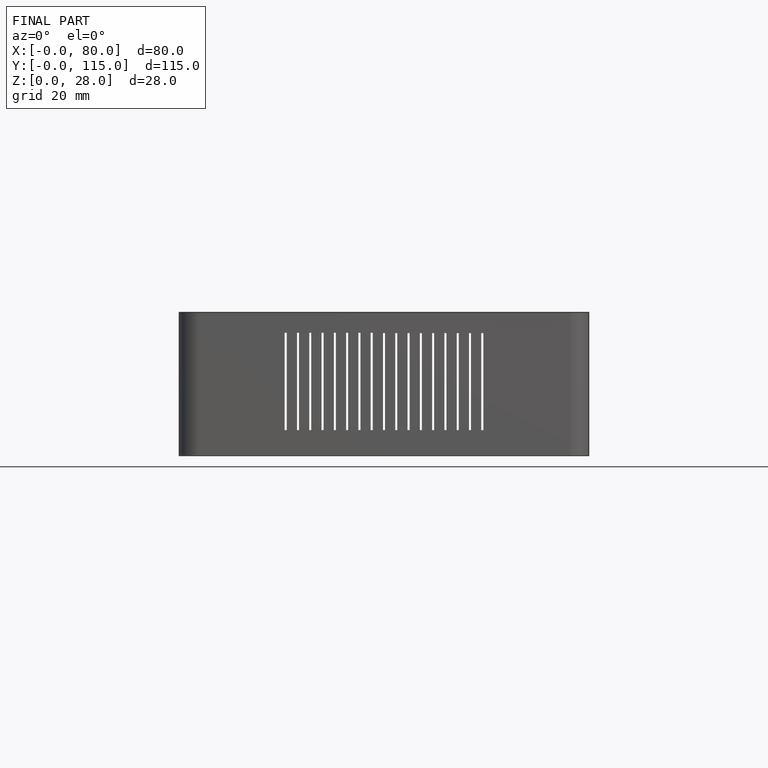
[diagram: finished part — front view with bounding-box wireframe]
